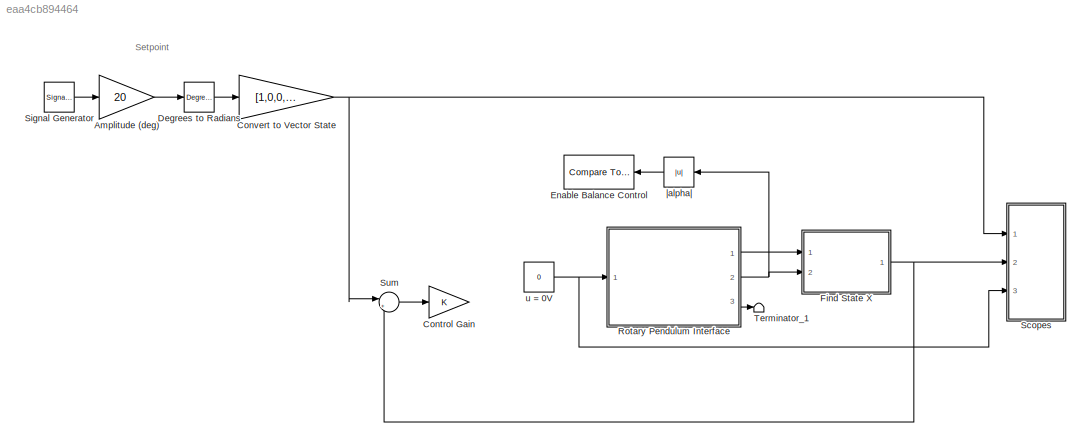
MODEL slx_eaa4cb894464
KIND model
CONFIG AbsTol = auto
CONFIG EnableMultiTasking = on
CONFIG FixedStep = 0.002
CONFIG MaxStep = auto
CONFIG MinStep = auto
CONFIG PostLoadFcn = qc_set_target_type(getConfigSet(bdroot, 'QUARC Default Target Configuration'));
CONFIG RelTol = 1e-3
CONFIG SampleTimeConstraint = Unconstrained
CONFIG Solver = ode1
CONFIG SolverName = ode1
CONFIG StartTime = 0.0
CONFIG StopTime = inf
BLOCK [Gain] Amplitude (deg)
  Gain = 20
BLOCK [Gain] Control Gain
  Gain = K
  Multiplication = Matrix(K*u)
  OutDataTypeStr = Inherit: Inherit via internal rule
  ParamDataTypeStr = Inherit: Inherit via internal rule
  SaturateOnIntegerOverflow = off
BLOCK [Gain] Convert to Vector State
  Gain = [1,0,0,0]
  OutDataTypeStr = Inherit: Inherit via internal rule
  ParamDataTypeStr = Inherit: Inherit via internal rule
  SaturateOnIntegerOverflow = off
BLOCK [Reference] Degrees to Radians  REF=simulink_extras/Transformations/Degrees to
Radians
  Ports = [1, 1]
  SourceBlock = simulink_extras/Transformations/Degrees to\nRadians
  SourceProductBaseCode = SL
  SourceProductName = Simulink
  SourceType = DegreesToRadians
BLOCK [Reference] Enable Balance Control  REF=simulink/Logic and Bit
Operations/Compare
To Constant
  Ports = [1, 1]
  SourceBlock = simulink/Logic and Bit\nOperations/Compare\nTo Constant
  SourceProductBaseCode = SL
  SourceProductName = Simulink
  SourceType = Compare To Constant
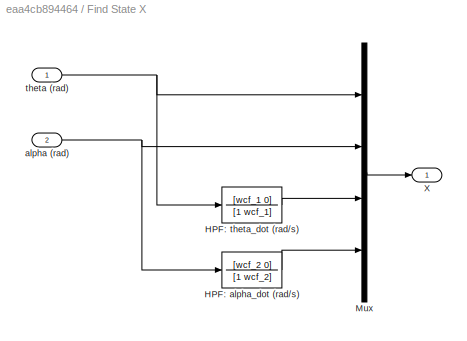
BLOCK [SubSystem] Find State X
  Ports = [2, 1]
  RequestExecContextInheritance = off
BLOCK [TransferFcn] Find State X/HPF: alpha_dot (rad//s)
  Denominator = [1 wcf_2]
  Numerator = [wcf_2 0]
BLOCK [TransferFcn] Find State X/HPF: theta_dot (rad//s)
  Denominator = [1 wcf_1]
  Numerator = [wcf_1 0]
BLOCK [Mux] Find State X/Mux
  DisplayOption = bar
  Ports = [4, 1]
BLOCK [Outport] Find State X/X
  IconDisplay = Port number
BLOCK [Inport] Find State X/alpha (rad)
  IconDisplay = Port number
  Port = 2
BLOCK [Inport] Find State X/theta (rad)
  IconDisplay = Port number
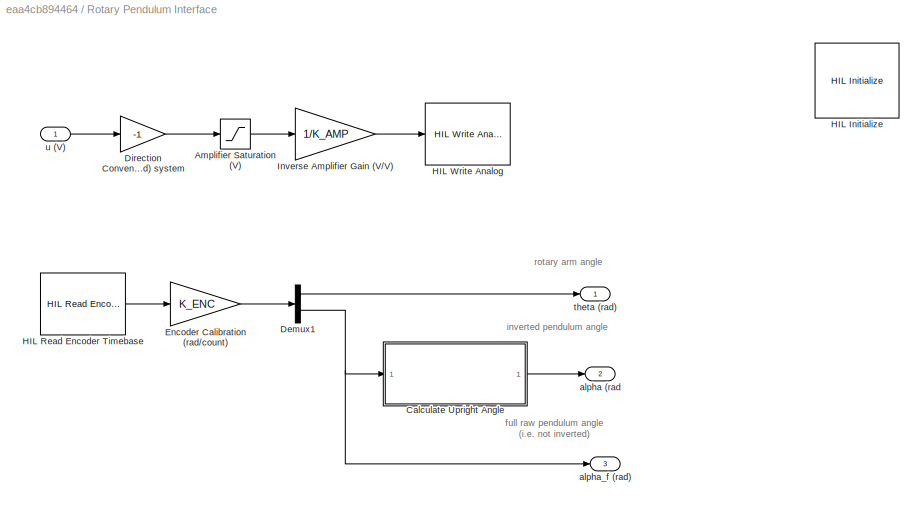
BLOCK [SubSystem] Rotary Pendulum Interface
  Ports = [1, 3]
  RequestExecContextInheritance = off
BLOCK [Saturate] Rotary Pendulum Interface/Amplifier Saturation (V)
  InputPortMap = u0
  LowerLimit = -5
  Ports = [1, 1]
  UpperLimit = 5
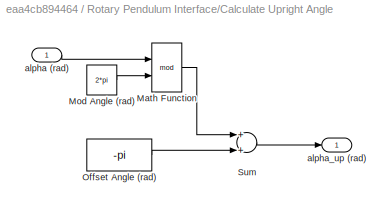
BLOCK [SubSystem] Rotary Pendulum Interface/Calculate Upright Angle
  Ports = [1, 1]
  RequestExecContextInheritance = off
BLOCK [Math] Rotary Pendulum Interface/Calculate Upright Angle/Math Function
  Operator = mod
  Ports = [2, 1]
BLOCK [Constant] Rotary Pendulum Interface/Calculate Upright Angle/Mod Angle (rad)
  Value = 2*pi
BLOCK [Constant] Rotary Pendulum Interface/Calculate Upright Angle/Offset Angle (rad)
  Value = -pi
BLOCK [Sum] Rotary Pendulum Interface/Calculate Upright Angle/Sum
  Ports = [2, 1]
BLOCK [Inport] Rotary Pendulum Interface/Calculate Upright Angle/alpha (rad)
  IconDisplay = Port number
BLOCK [Outport] Rotary Pendulum Interface/Calculate Upright Angle/alpha_up (rad)
  IconDisplay = Port number
BLOCK [Demux] Rotary Pendulum Interface/Demux1
  DisplayOption = bar
  Outputs = 2
  Ports = [1, 2]
BLOCK [Gain] Rotary Pendulum Interface/Direction Convention: (Right-Hand) system
  Gain = -1
BLOCK [Gain] Rotary Pendulum Interface/Encoder Calibration (rad//count)
  Gain = K_ENC
BLOCK [Reference] Rotary Pendulum Interface/HIL Initialize  REF=quarc_library/Data Acquisition/Generic/Configuration/HIL Initialize
  AttributesFormatString = %<object_name> (%<board_type>-%<board_number>)
  Ports = []
  SourceBlock = quarc_library/Data Acquisition/Generic/Configuration/HIL Initialize
  SourceProductName = QUARC Targets
  SourceType = HIL Initialize
  UserDataPersistent = on
BLOCK [Reference] Rotary Pendulum Interface/HIL Read Encoder Timebase  REF=quarc_library/Data Acquisition/Generic/Timebases/HIL Read Encoder
Timebase
  AttributesFormatString = (%<object_name>)
  Ports = [0, 1]
  SourceBlock = quarc_library/Data Acquisition/Generic/Timebases/HIL Read Encoder\nTimebase
  SourceProductName = QUARC Targets
  SourceType = HIL Read Encoder Timebase
  UserDataPersistent = on
BLOCK [Reference] Rotary Pendulum Interface/HIL Write Analog  REF=quarc_library/Data Acquisition/Generic/Immediate I//O/HIL Write Analog
  AttributesFormatString = (%<object_name>)
  Ports = [1]
  SourceBlock = quarc_library/Data Acquisition/Generic/Immediate I//O/HIL Write Analog
  SourceProductName = QUARC Targets
  SourceType = HIL Write Analog
  UserDataPersistent = on
BLOCK [Gain] Rotary Pendulum Interface/Inverse Amplifier Gain (V//V)
  Gain = 1/K_AMP
  OutDataTypeStr = Inherit: Inherit via internal rule
  ParamDataTypeStr = Inherit: Inherit via internal rule
  SaturateOnIntegerOverflow = off
BLOCK [Outport] Rotary Pendulum Interface/alpha (rad
  IconDisplay = Port number
  Port = 2
BLOCK [Outport] Rotary Pendulum Interface/alpha_f (rad)
  IconDisplay = Port number
  Port = 3
BLOCK [Outport] Rotary Pendulum Interface/theta (rad)
  IconDisplay = Port number
BLOCK [Inport] Rotary Pendulum Interface/u (V)
  IconDisplay = Port number
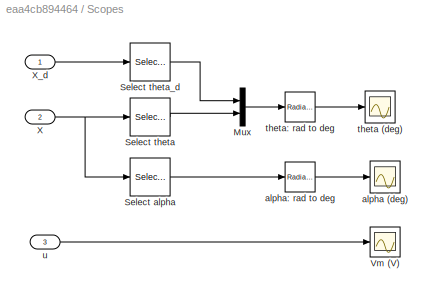
BLOCK [SubSystem] Scopes
  Ports = [3]
  RequestExecContextInheritance = off
BLOCK [Mux] Scopes/Mux
  DisplayOption = bar
  Inputs = 2
  Ports = [2, 1]
BLOCK [Selector] Scopes/Select alpha
  IndexOptions = Index vector (dialog)
  Indices = 2
  InputPortWidth = 4
  OutputSizes = [(-2)]
  Ports = [1, 1]
BLOCK [Selector] Scopes/Select theta
  IndexOptions = Index vector (dialog)
  Indices = 1
  InputPortWidth = 4
  OutputSizes = [(-2)]
  Ports = [1, 1]
BLOCK [Selector] Scopes/Select theta_d
  IndexOptions = Index vector (dialog)
  Indices = 1
  InputPortWidth = 4
  OutputSizes = [(-2)]
  Ports = [1, 1]
BLOCK [Scope] Scopes/Vm (V)
  Floating = off
  NumInputPorts = 1
  Ports = [1]
  ScopeSpecificationString = Simulink.scopes.TimeScopeBlockCfg('CurrentConfiguration', extmgr.ConfigurationSet(extmgr.Configuration('Core','General UI',true),extmgr.Configuration('Core','Source UI',true),extmgr.Configuration('Sources','WiredSimulink',true,'DataLogging',true,'DataLoggingVariableName','data_Vm','DataLoggingSaveFormat','Array','DataLoggingLimitDataPoints',true,'DataLoggingDecimation','1','DataLoggingDecimateData...<+1031ch>
BLOCK [Inport] Scopes/X
  IconDisplay = Port number
  Port = 2
BLOCK [Inport] Scopes/X_d
  IconDisplay = Port number
BLOCK [Scope] Scopes/alpha (deg)
  Floating = off
  NumInputPorts = 1
  Ports = [1]
  ScopeSpecificationString = Simulink.scopes.TimeScopeBlockCfg('CurrentConfiguration', extmgr.ConfigurationSet(extmgr.Configuration('Core','General UI',true),extmgr.Configuration('Core','Source UI',true),extmgr.Configuration('Sources','WiredSimulink',true,'DataLogging',true,'DataLoggingVariableName','data_alpha','DataLoggingSaveFormat','Array','DataLoggingLimitDataPoints',true,'DataLoggingDecimation','1','DataLoggingDecimateD...<+1736ch>
BLOCK [Reference] Scopes/alpha: rad to deg  REF=simulink_extras/Transformations/Radians
to Degrees
  Ports = [1, 1]
  SourceBlock = simulink_extras/Transformations/Radians\nto Degrees
  SourceProductBaseCode = SL
  SourceProductName = Simulink
  SourceType = RadiansToDegrees
BLOCK [Scope] Scopes/theta (deg)
  Floating = off
  NumInputPorts = 1
  Ports = [1]
  ScopeSpecificationString = Simulink.scopes.TimeScopeBlockCfg('CurrentConfiguration', extmgr.ConfigurationSet(extmgr.Configuration('Core','General UI',true),extmgr.Configuration('Core','Source UI',true),extmgr.Configuration('Sources','WiredSimulink',true,'DataLogging',true,'DataLoggingVariableName','data_theta','DataLoggingSaveFormat','Array','DataLoggingLimitDataPoints',true,'DataLoggingDecimation','1','DataLoggingDecimateD...<+1684ch>
BLOCK [Reference] Scopes/theta: rad to deg  REF=simulink_extras/Transformations/Radians
to Degrees
  Ports = [1, 1]
  SourceBlock = simulink_extras/Transformations/Radians\nto Degrees
  SourceProductBaseCode = SL
  SourceProductName = Simulink
  SourceType = RadiansToDegrees
BLOCK [Inport] Scopes/u
  IconDisplay = Port number
  Port = 3
BLOCK [SignalGenerator] Signal Generator
  Frequency = 0.1
  Ports = [0, 1]
  WaveForm = square
BLOCK [Sum] Sum
  IconShape = round
  InputSameDT = off
  Inputs = |+-
  OutDataTypeStr = Inherit: Inherit via internal rule
  Ports = [2, 1]
  SaturateOnIntegerOverflow = off
BLOCK [Terminator] Terminator_1
BLOCK [Constant] u = 0V
  Value = 0
BLOCK [Abs] |alpha|
  SaturateOnIntegerOverflow = off
ANNOTATION (root): Setpoint
ANNOTATION Rotary Pendulum Interface: full raw pendulum angle (i.e. not inverted)
ANNOTATION Rotary Pendulum Interface: inverted pendulum angle
ANNOTATION Rotary Pendulum Interface: rotary arm angle
LINE Amplitude (deg):1 -> Degrees to Radians:1
NET Convert to Vector State:1 -> Scopes:1, Sum:1
LINE Degrees to Radians:1 -> Convert to Vector State:1
LINE Find State X/HPF: alpha_dot (rad//s):1 -> Find State X/Mux:4
LINE Find State X/HPF: theta_dot (rad//s):1 -> Find State X/Mux:3
LINE Find State X/Mux:1 -> Find State X/X:1
NET Find State X/alpha (rad):1 -> Find State X/HPF: alpha_dot (rad//s):1, Find State X/Mux:2
NET Find State X/theta (rad):1 -> Find State X/HPF: theta_dot (rad//s):1, Find State X/Mux:1
NET Find State X:1 -> Scopes:2, Sum:2
LINE Rotary Pendulum Interface/Amplifier Saturation (V):1 -> Rotary Pendulum Interface/Inverse Amplifier Gain (V//V):1
LINE Rotary Pendulum Interface/Calculate Upright Angle/Math Function:1 -> Rotary Pendulum Interface/Calculate Upright Angle/Sum:1
LINE Rotary Pendulum Interface/Calculate Upright Angle/Mod Angle (rad):1 -> Rotary Pendulum Interface/Calculate Upright Angle/Math Function:2
LINE Rotary Pendulum Interface/Calculate Upright Angle/Offset Angle (rad):1 -> Rotary Pendulum Interface/Calculate Upright Angle/Sum:2
LINE Rotary Pendulum Interface/Calculate Upright Angle/Sum:1 -> Rotary Pendulum Interface/Calculate Upright Angle/alpha_up (rad):1
LINE Rotary Pendulum Interface/Calculate Upright Angle/alpha (rad):1 -> Rotary Pendulum Interface/Calculate Upright Angle/Math Function:1
LINE Rotary Pendulum Interface/Calculate Upright Angle:1 -> Rotary Pendulum Interface/alpha (rad:1
LINE Rotary Pendulum Interface/Demux1:1 -> Rotary Pendulum Interface/theta (rad):1
NET Rotary Pendulum Interface/Demux1:2 -> Rotary Pendulum Interface/Calculate Upright Angle:1, Rotary Pendulum Interface/alpha_f (rad):1
LINE Rotary Pendulum Interface/Direction Convention: (Right-Hand) system:1 -> Rotary Pendulum Interface/Amplifier Saturation (V):1
LINE Rotary Pendulum Interface/Encoder Calibration (rad//count):1 -> Rotary Pendulum Interface/Demux1:1
LINE Rotary Pendulum Interface/HIL Read Encoder Timebase:1 -> Rotary Pendulum Interface/Encoder Calibration (rad//count):1
LINE Rotary Pendulum Interface/Inverse Amplifier Gain (V//V):1 -> Rotary Pendulum Interface/HIL Write Analog:1
LINE Rotary Pendulum Interface/u (V):1 -> Rotary Pendulum Interface/Direction Convention: (Right-Hand) system:1
LINE Rotary Pendulum Interface:1 -> Find State X:1
NET Rotary Pendulum Interface:2 -> Find State X:2, |alpha|:1
LINE Rotary Pendulum Interface:3 -> Terminator_1:1
LINE Scopes/Mux:1 -> Scopes/theta: rad to deg:1
LINE Scopes/Select alpha:1 -> Scopes/alpha: rad to deg:1
LINE Scopes/Select theta:1 -> Scopes/Mux:2
LINE Scopes/Select theta_d:1 -> Scopes/Mux:1
NET Scopes/X:1 -> Scopes/Select alpha:1, Scopes/Select theta:1
LINE Scopes/X_d:1 -> Scopes/Select theta_d:1
LINE Scopes/alpha: rad to deg:1 -> Scopes/alpha (deg):1
LINE Scopes/theta: rad to deg:1 -> Scopes/theta (deg):1
LINE Scopes/u:1 -> Scopes/Vm (V):1
LINE Signal Generator:1 -> Amplitude (deg):1
LINE Sum:1 -> Control Gain:1
NET u = 0V:1 -> Rotary Pendulum Interface:1, Scopes:3
LINE |alpha|:1 -> Enable Balance Control:1
note: NET lines group one-source signal fan-out (src -> all destinations, sorted); 1:1 wires keep LINE
